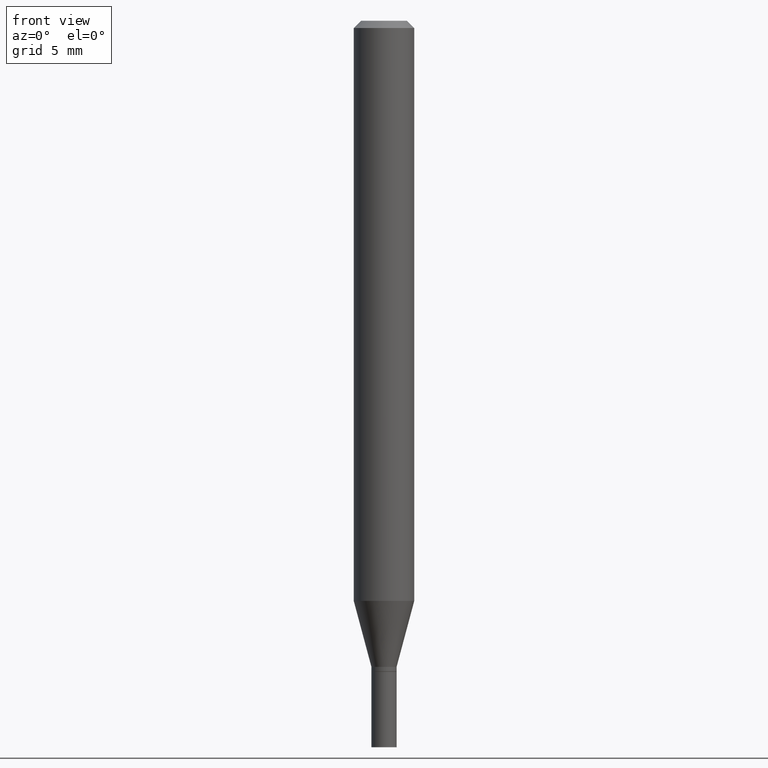
[diagram: clean part render]
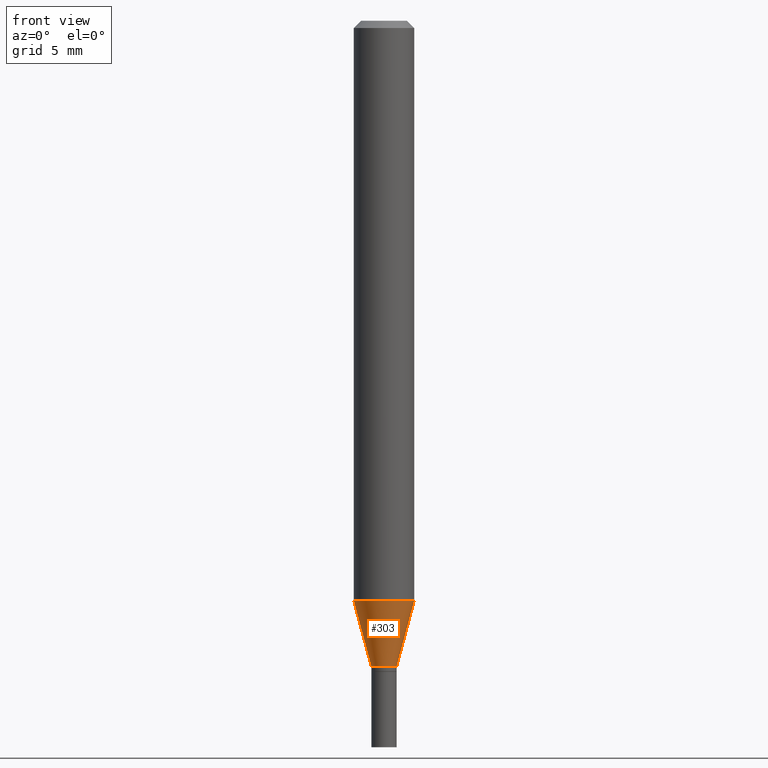
[diagram: same view with one face highlighted and labeled with its STEP entity id]
A machine part, front view. The second image highlights one B-rep face of the part: STEP entity #303.
In plain terms, the highlighted conical surface has half-angle 15 deg.
Its self-contained STEP definition (entity closure, byte-faithful):
#8 = DIRECTION ( 'NONE',  ( -2.445468806185136597E-29, 3.491481338843145583E-15, 1.000000000000000000 ) ) ;
#11 = LINE ( 'NONE', #232, #123 ) ;
#17 = FACE_OUTER_BOUND ( 'NONE', #322, .T. ) ;
#19 = DIRECTION ( 'NONE',  ( -2.445468806185136597E-29, 3.491481338843145583E-15, 1.000000000000000000 ) ) ;
#27 = ORIENTED_EDGE ( 'NONE', *, *, #68, .F. ) ;
#41 = CARTESIAN_POINT ( 'NONE',  ( 0.02599999999999992248, -4.839193135636598797E-15, -1.334000000000000075 ) ) ;
#42 = VERTEX_POINT ( 'NONE', #215 ) ;
#56 = EDGE_CURVE ( 'NONE', #355, #353, #72, .T. ) ;
#63 = DIRECTION ( 'NONE',  ( 1.000000000000000000, -6.982962677686278543E-15, 0.000000000000000000 ) ) ;
#68 = EDGE_CURVE ( 'NONE', #42, #361, #11, .T. ) ;
#72 = LINE ( 'NONE', #41, #74 ) ;
#74 = VECTOR ( 'NONE', #255, 39.37007874015747433 ) ;
#80 = ORIENTED_EDGE ( 'NONE', *, *, #434, .F. ) ;
#91 = CARTESIAN_POINT ( 'NONE',  ( 2.929133982546189833E-29, -4.182027026132951363E-15, -1.197780145523736017 ) ) ;
#93 = CARTESIAN_POINT ( 'NONE',  ( 3.262255387450972157E-29, -4.657636106016756115E-15, -1.334000000000000075 ) ) ;
#123 = VECTOR ( 'NONE', #321, 39.37007874015747433 ) ;
#148 = DIRECTION ( 'NONE',  ( 1.000000000000000000, -6.982962677686270655E-15, 0.000000000000000000 ) ) ;
#150 = CARTESIAN_POINT ( 'NONE',  ( 0.02599999999999992248, -4.839193135636598797E-15, -1.334000000000000075 ) ) ;
#215 = CARTESIAN_POINT ( 'NONE',  ( -0.02599999999999992248, -4.105416405501009719E-15, -1.334000000000000075 ) ) ;
#232 = CARTESIAN_POINT ( 'NONE',  ( -0.02599999999999992248, -4.472894994719129903E-15, -1.334000000000000075 ) ) ;
#255 = DIRECTION ( 'NONE',  ( 0.2588190451025213501, 1.565188264969621968E-15, 0.9659258262890682012 ) ) ;
#264 = CIRCLE ( 'NONE', #347, 0.02599999999999992248 ) ;
#270 = EDGE_CURVE ( 'NONE', #42, #355, #264, .T. ) ;
#284 = ORIENTED_EDGE ( 'NONE', *, *, #56, .T. ) ;
#293 = AXIS2_PLACEMENT_3D ( 'NONE', #93, #19, #63 ) ;
#303 = ADVANCED_FACE ( 'NONE', ( #17 ), #381, .T. ) ;
#311 = DIRECTION ( 'NONE',  ( -2.445468806185136597E-29, 3.491481338843145583E-15, 1.000000000000000000 ) ) ;
#321 = DIRECTION ( 'NONE',  ( -0.2588190451025213501, 5.211531920934551042E-15, 0.9659258262890682012 ) ) ;
#322 = EDGE_LOOP ( 'NONE', ( #27, #403, #284, #80 ) ) ;
#347 = AXIS2_PLACEMENT_3D ( 'NONE', #450, #311, #379 ) ;
#353 = VERTEX_POINT ( 'NONE', #401 ) ;
#355 = VERTEX_POINT ( 'NONE', #150 ) ;
#361 = VERTEX_POINT ( 'NONE', #464 ) ;
#379 = DIRECTION ( 'NONE',  ( 1.000000000000000000, -6.982962677686278543E-15, 0.000000000000000000 ) ) ;
#381 = CONICAL_SURFACE ( 'NONE', #293, 0.02599999999999992248, 0.2617993877991500740 ) ;
#401 = CARTESIAN_POINT ( 'NONE',  ( 0.06250000000000000000, -4.618462193488343821E-15, -1.197780145523736017 ) ) ;
#403 = ORIENTED_EDGE ( 'NONE', *, *, #270, .T. ) ;
#417 = AXIS2_PLACEMENT_3D ( 'NONE', #91, #8, #148 ) ;
#434 = EDGE_CURVE ( 'NONE', #361, #353, #437, .T. ) ;
#437 = CIRCLE ( 'NONE', #417, 0.06250000000000000000 ) ;
#450 = CARTESIAN_POINT ( 'NONE',  ( 3.262255387450972157E-29, -4.657636106016756115E-15, -1.334000000000000075 ) ) ;
#464 = CARTESIAN_POINT ( 'NONE',  ( -0.06250000000000000000, -3.737937816282888747E-15, -1.197780145523736017 ) ) ;